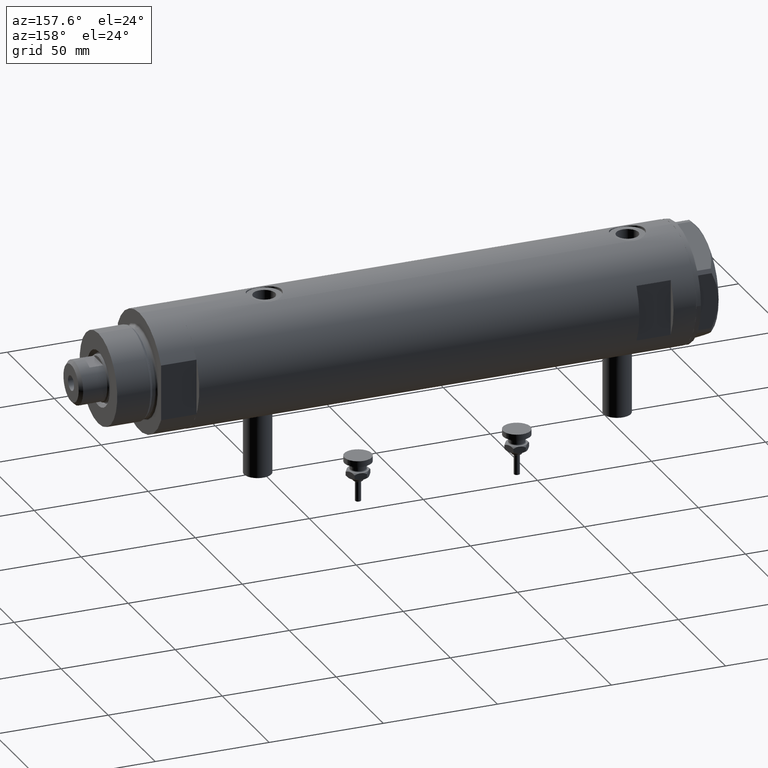
[diagram: clean part render]
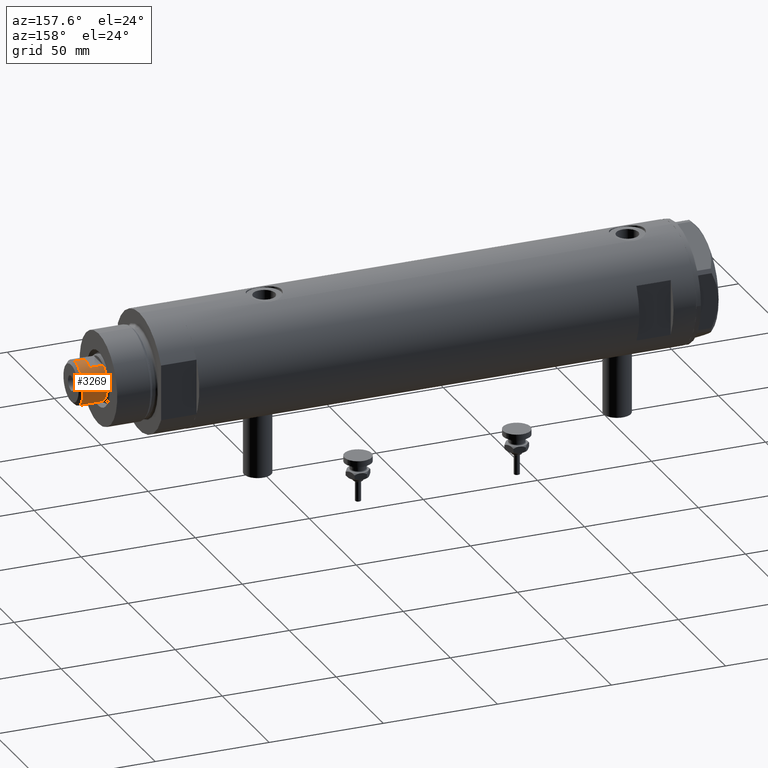
[diagram: same view with one face highlighted and labeled with its STEP entity id]
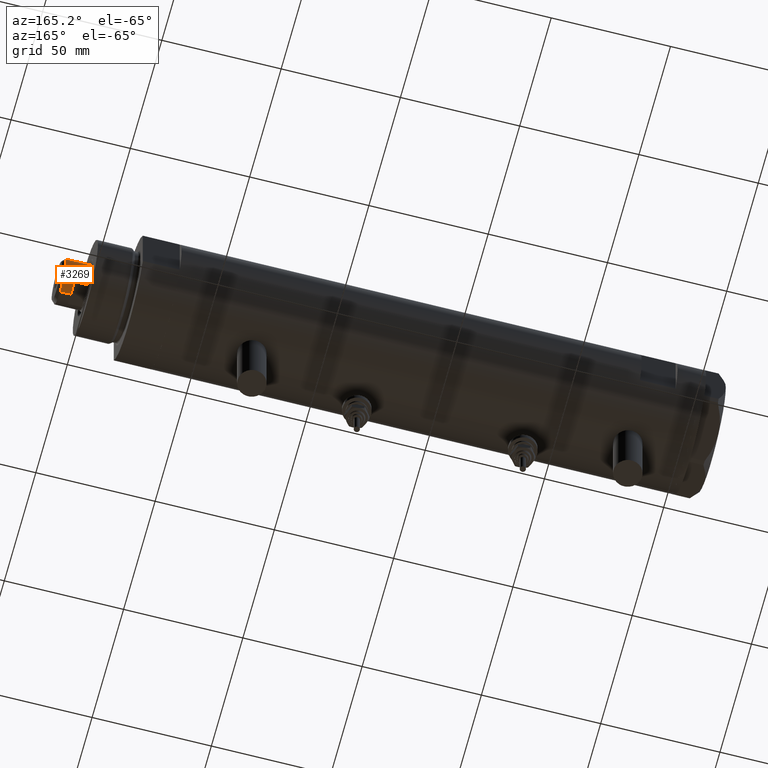
[diagram: same view with one face highlighted and labeled with its STEP entity id]
A machine part, auxiliary view. The second image highlights one B-rep face of the part: STEP entity #3269.
A second angle (auxiliary view) of the same face is appended — the face is thin or edge-on in the first view.
In plain terms, the highlighted cylindrical surface (edge-blend (fillet) strip) has radius 9.5 mm, axis along (-1, -0, 0).
Its self-contained STEP definition (entity closure, byte-faithful):
#12 = CIRCLE ( 'NONE', #5933, 9.500000000000145661 ) ;
#90 = CARTESIAN_POINT ( 'NONE',  ( 0.000000000000000000, 0.000000000000000000, 233.5999999999999943 ) ) ;
#93 = ORIENTED_EDGE ( 'NONE', *, *, #4464, .F. ) ;
#115 = AXIS2_PLACEMENT_3D ( 'NONE', #3914, #3449, #5877 ) ;
#148 = EDGE_CURVE ( 'NONE', #1302, #2778, #4378, .T. ) ;
#156 = DIRECTION ( 'NONE',  ( 0.000000000000000000, 0.000000000000000000, 1.000000000000000000 ) ) ;
#354 = CARTESIAN_POINT ( 'NONE',  ( -7.982950582334830791, 5.149999999999999467, 233.5999999999999943 ) ) ;
#498 = ORIENTED_EDGE ( 'NONE', *, *, #2947, .T. ) ;
#501 = DIRECTION ( 'NONE',  ( -0.000000000000000000, -0.000000000000000000, -1.000000000000000000 ) ) ;
#694 = CARTESIAN_POINT ( 'NONE',  ( -9.500000000000001776, 0.000000000000000000, 233.5999999999999943 ) ) ;
#999 = EDGE_CURVE ( 'NONE', #3061, #5526, #12, .T. ) ;
#1033 = EDGE_CURVE ( 'NONE', #4703, #5196, #6035, .T. ) ;
#1089 = CARTESIAN_POINT ( 'NONE',  ( -9.500000000000000000, 0.000000000000000000, 233.5999999999999943 ) ) ;
#1144 = LINE ( 'NONE', #694, #4193 ) ;
#1219 = AXIS2_PLACEMENT_3D ( 'NONE', #3493, #4376, #5349 ) ;
#1302 = VERTEX_POINT ( 'NONE', #3156 ) ;
#1394 = CARTESIAN_POINT ( 'NONE',  ( -9.500000000000001776, 0.000000000000000000, 238.1999999999999886 ) ) ;
#1625 = VERTEX_POINT ( 'NONE', #4996 ) ;
#1663 = EDGE_CURVE ( 'NONE', #1625, #6129, #3790, .T. ) ;
#1718 = DIRECTION ( 'NONE',  ( -0.000000000000000000, -0.000000000000000000, -1.000000000000000000 ) ) ;
#1773 = EDGE_CURVE ( 'NONE', #4703, #6129, #1144, .T. ) ;
#1869 = VECTOR ( 'NONE', #5786, 1000.000000000000000 ) ;
#1974 = CYLINDRICAL_SURFACE ( 'NONE', #6250, 9.500000000000001776 ) ;
#2037 = DIRECTION ( 'NONE',  ( -0.000000000000000000, -0.000000000000000000, -1.000000000000000000 ) ) ;
#2116 = LINE ( 'NONE', #3551, #5132 ) ;
#2333 = LINE ( 'NONE', #354, #1869 ) ;
#2395 = CARTESIAN_POINT ( 'NONE',  ( 0.000000000000000000, 0.000000000000000000, 233.5999999999999943 ) ) ;
#2427 = DIRECTION ( 'NONE',  ( 1.000000000000000000, 0.000000000000000000, 0.000000000000000000 ) ) ;
#2597 = CARTESIAN_POINT ( 'NONE',  ( 7.982950582334830791, 5.149999999999999467, 227.5999999999999943 ) ) ;
#2778 = VERTEX_POINT ( 'NONE', #5469 ) ;
#2843 = CARTESIAN_POINT ( 'NONE',  ( 0.000000000000000000, 0.000000000000000000, 227.5999999999999943 ) ) ;
#2875 = VECTOR ( 'NONE', #3227, 1000.000000000000000 ) ;
#2947 = EDGE_CURVE ( 'NONE', #2778, #3061, #2116, .T. ) ;
#3061 = VERTEX_POINT ( 'NONE', #2597 ) ;
#3120 = EDGE_CURVE ( 'NONE', #5196, #1302, #3198, .T. ) ;
#3156 = CARTESIAN_POINT ( 'NONE',  ( 9.500000000000000000, 1.163414459189985485E-15, 233.5999999999999943 ) ) ;
#3198 = LINE ( 'NONE', #4749, #2875 ) ;
#3227 = DIRECTION ( 'NONE',  ( -0.000000000000000000, -0.000000000000000000, -1.000000000000000000 ) ) ;
#3269 = ADVANCED_FACE ( 'NONE', ( #4944 ), #1974, .T. ) ;
#3449 = DIRECTION ( 'NONE',  ( 0.000000000000000000, 0.000000000000000000, -1.000000000000000000 ) ) ;
#3493 = CARTESIAN_POINT ( 'NONE',  ( 0.000000000000000000, 0.000000000000000000, 233.5999999999999943 ) ) ;
#3551 = CARTESIAN_POINT ( 'NONE',  ( 7.982950582334830791, 5.149999999999999467, 233.5999999999999943 ) ) ;
#3597 = ORIENTED_EDGE ( 'NONE', *, *, #999, .T. ) ;
#3790 = CIRCLE ( 'NONE', #4294, 9.500000000000000000 ) ;
#3914 = CARTESIAN_POINT ( 'NONE',  ( 0.000000000000000000, 0.000000000000000000, 238.1999999999999886 ) ) ;
#4193 = VECTOR ( 'NONE', #2037, 1000.000000000000000 ) ;
#4250 = EDGE_LOOP ( 'NONE', ( #5124, #5686, #5071, #498, #3597, #93, #5794, #5996 ) ) ;
#4294 = AXIS2_PLACEMENT_3D ( 'NONE', #90, #156, #4425 ) ;
#4376 = DIRECTION ( 'NONE',  ( 0.000000000000000000, 0.000000000000000000, 1.000000000000000000 ) ) ;
#4378 = CIRCLE ( 'NONE', #1219, 9.500000000000000000 ) ;
#4418 = CARTESIAN_POINT ( 'NONE',  ( 9.500000000000001776, 1.163414459189985682E-15, 238.1999999999999886 ) ) ;
#4425 = DIRECTION ( 'NONE',  ( 1.000000000000000000, 0.000000000000000000, 0.000000000000000000 ) ) ;
#4464 = EDGE_CURVE ( 'NONE', #1625, #5526, #2333, .T. ) ;
#4703 = VERTEX_POINT ( 'NONE', #1394 ) ;
#4749 = CARTESIAN_POINT ( 'NONE',  ( 9.500000000000001776, 1.163414459189985682E-15, 233.5999999999999943 ) ) ;
#4944 = FACE_OUTER_BOUND ( 'NONE', #4250, .T. ) ;
#4951 = CARTESIAN_POINT ( 'NONE',  ( -7.982950582334829015, 5.150000000000267697, 227.5999999999999943 ) ) ;
#4996 = CARTESIAN_POINT ( 'NONE',  ( -7.982950582334830791, 5.149999999999999467, 233.5999999999999943 ) ) ;
#5071 = ORIENTED_EDGE ( 'NONE', *, *, #148, .T. ) ;
#5124 = ORIENTED_EDGE ( 'NONE', *, *, #1033, .T. ) ;
#5132 = VECTOR ( 'NONE', #1718, 1000.000000000000000 ) ;
#5196 = VERTEX_POINT ( 'NONE', #4418 ) ;
#5349 = DIRECTION ( 'NONE',  ( 1.000000000000000000, 0.000000000000000000, 0.000000000000000000 ) ) ;
#5365 = DIRECTION ( 'NONE',  ( 0.000000000000000000, 0.000000000000000000, 1.000000000000000000 ) ) ;
#5469 = CARTESIAN_POINT ( 'NONE',  ( 7.982950582334830791, 5.149999999999999467, 233.5999999999999943 ) ) ;
#5526 = VERTEX_POINT ( 'NONE', #4951 ) ;
#5686 = ORIENTED_EDGE ( 'NONE', *, *, #3120, .T. ) ;
#5786 = DIRECTION ( 'NONE',  ( -0.000000000000000000, -0.000000000000000000, -1.000000000000000000 ) ) ;
#5794 = ORIENTED_EDGE ( 'NONE', *, *, #1663, .T. ) ;
#5877 = DIRECTION ( 'NONE',  ( 1.000000000000000000, 0.000000000000000000, 0.000000000000000000 ) ) ;
#5906 = DIRECTION ( 'NONE',  ( -1.000000000000000000, 0.000000000000000000, 0.000000000000000000 ) ) ;
#5933 = AXIS2_PLACEMENT_3D ( 'NONE', #2843, #5365, #2427 ) ;
#5996 = ORIENTED_EDGE ( 'NONE', *, *, #1773, .F. ) ;
#6035 = CIRCLE ( 'NONE', #115, 9.500000000000001776 ) ;
#6129 = VERTEX_POINT ( 'NONE', #1089 ) ;
#6250 = AXIS2_PLACEMENT_3D ( 'NONE', #2395, #501, #5906 ) ;